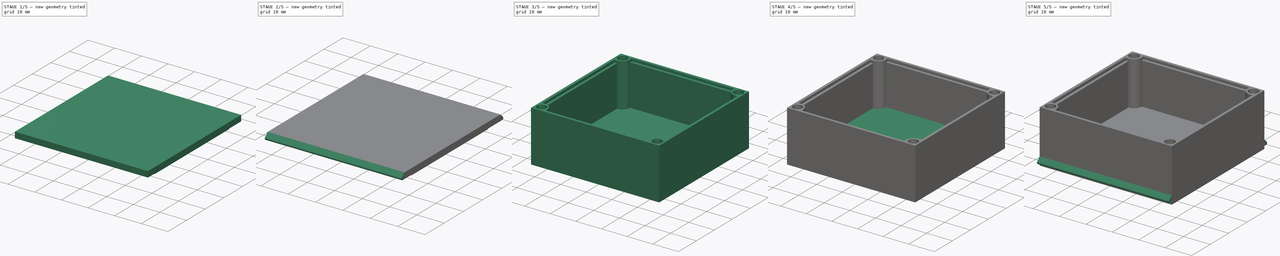
[diagram: build sequence overview — one tinted view per stage of 5, left to right]
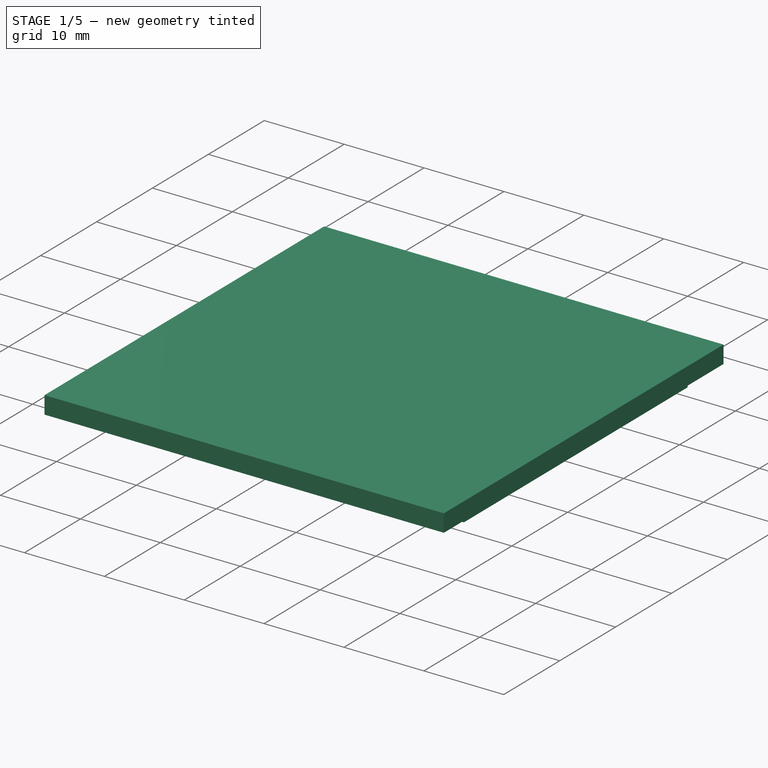
[diagram: stage 1 of 5 — iso view after this stage's code; geometry added in this stage tinted green]
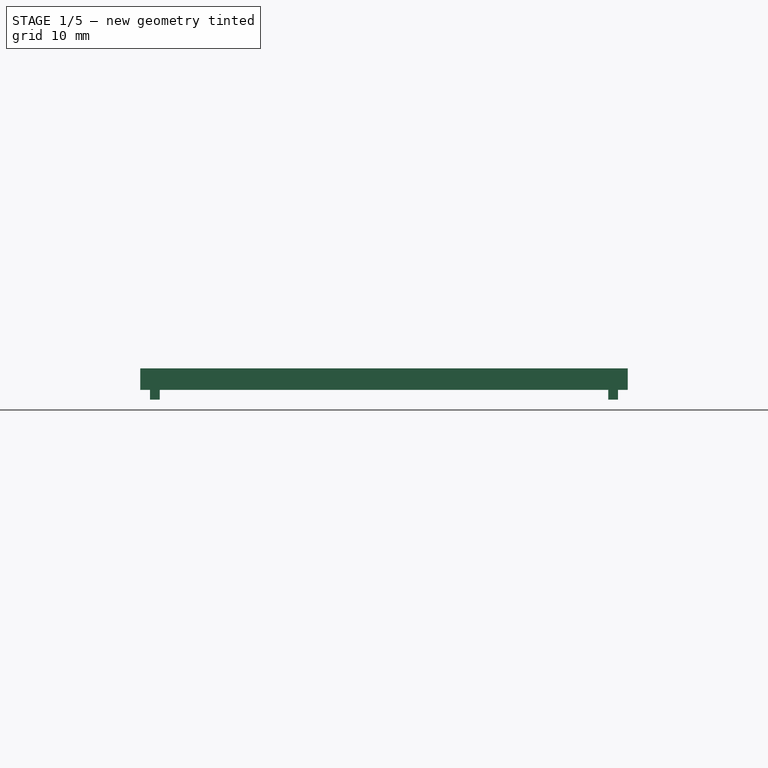
[diagram: stage 1 of 5 — front view after this stage's code; geometry added in this stage tinted green]
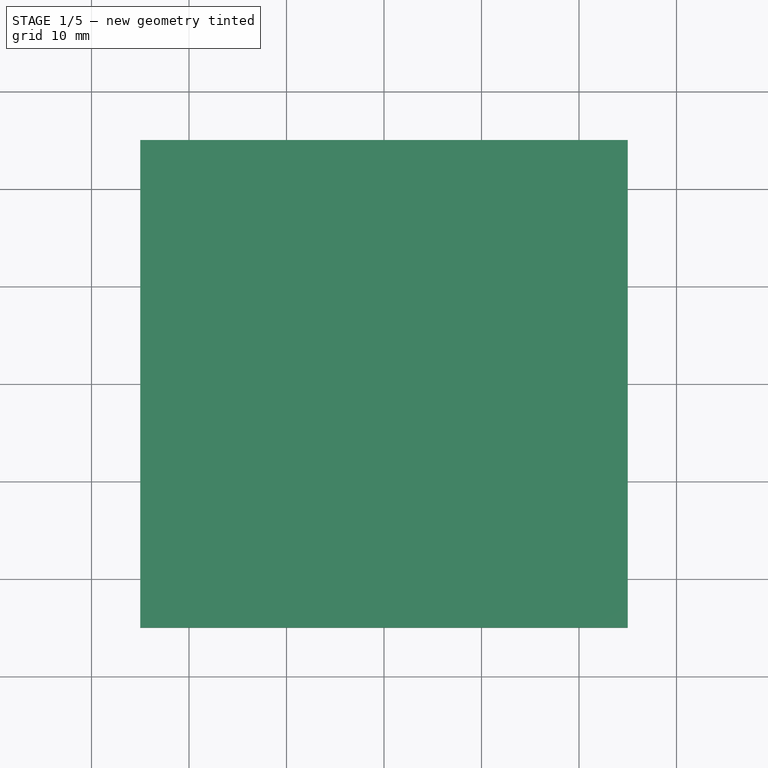
[diagram: stage 1 of 5 — top view after this stage's code; geometry added in this stage tinted green]
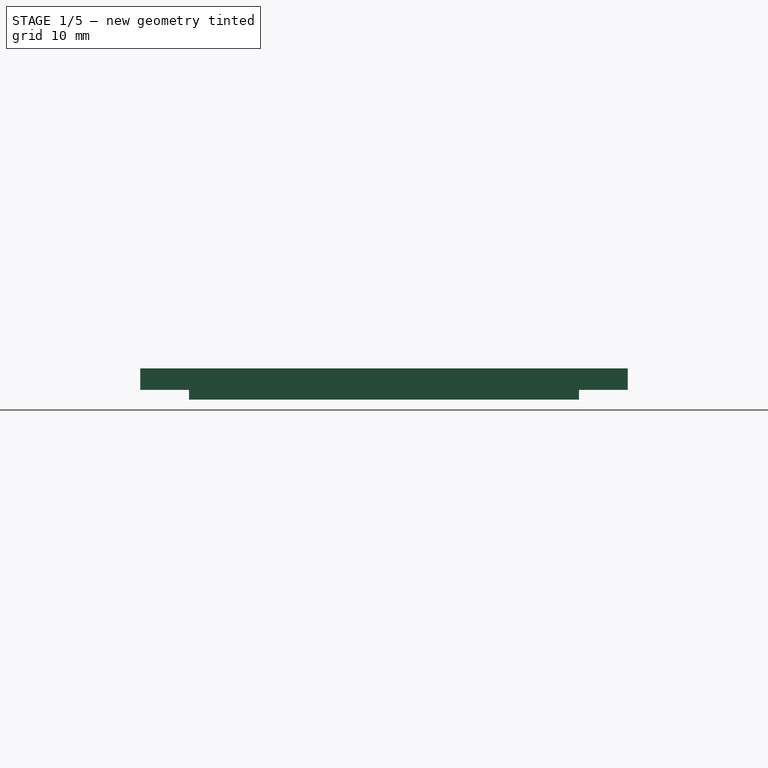
[diagram: stage 1 of 5 — right view after this stage's code; geometry added in this stage tinted green]
FCSTD DOCUMENT  (FreeCAD 1.1R41843 (Git))
Label: Безымянный
License: All rights reserved
LicenseURL: https://en.wikipedia.org/wiki/All_rights_reserved
objects: PartDesign::Pad×10, PartDesign::SubShapeBinder×9, Sketcher::SketchObject×8, App::Point×3, PartDesign::Pocket×3, PartDesign::Body×3, Spreadsheet::Sheet×2, Part::DatumPlane×2, PartDesign::Fillet×2, Part::Cut×1
note: 74 computed .brp shape members not serialized (recipe doc carries the construction recipe); baked Part::Feature solids carry a one-line shape summary decoded from their .brp

FEATURE [PartDesign::Body] Body001  label="Тело001"
  AllowCompound = false
  Group = -> [Binder001,DatumPlane,Sketch002,Binder002,Pad002,Pad003,Binder007,Pocket001,Binder008,Sketch003,Pad004,Sketch004,Pad005,Fillet]
  Origin = -> Origin002
  Placement = pos=(0,0,19) rot=(0,0,1;0rad)
  Tip = -> Fillet
FEATURE [PartDesign::SubShapeBinder] Binder010
  BindCopyOnChange = 0
  BindMode = 0
  ClaimChildren = false
  Context = -> Body003 [Binder010.]
  Fuse = false
  MakeFace = true
  OffsetFill = false
  OffsetIntersection = false
  OffsetJoinType = 0
  OffsetOpenResult = false
  PartialLoad = false
  Refine = true
  Relative = true
  _Version = 2
FEATURE [PartDesign::SubShapeBinder] Binder011
  BindCopyOnChange = 0
  BindMode = 0
  ClaimChildren = false
  Context = -> Body003 [Binder011.]
  Fuse = false
  MakeFace = true
  OffsetFill = false
  OffsetIntersection = false
  OffsetJoinType = 0
  OffsetOpenResult = false
  PartialLoad = false
  Refine = true
  Relative = true
  _Version = 2
FEATURE [PartDesign::SubShapeBinder] Binder012
  BindCopyOnChange = 0
  BindMode = 0
  ClaimChildren = false
  Context = -> Body003 [Binder012.]
  Fuse = false
  MakeFace = true
  OffsetFill = false
  OffsetIntersection = false
  OffsetJoinType = 0
  OffsetOpenResult = false
  PartialLoad = false
  Refine = true
  Relative = true
  _Version = 2
FEATURE [PartDesign::SubShapeBinder] Binder013
  BindCopyOnChange = 0
  BindMode = 0
  ClaimChildren = false
  Context = -> Body003 [Binder013.]
  Fuse = false
  MakeFace = true
  OffsetFill = false
  OffsetIntersection = false
  OffsetJoinType = 0
  OffsetOpenResult = false
  PartialLoad = false
  Refine = true
  Relative = true
  _Version = 2
FEATURE [Part::DatumPlane] DatumPlane001
  AttachmentSupport = -> [Binder010]
  MapMode = 13
  Placement = pos=(-7.66667,-6.66667,-2) rot=(0,0,1;0rad)
FEATURE [App::Point] Origin007  label="Начало координат007"
  Role = Origin
FEATURE [PartDesign::Pad] Pad008
  Direction = (0,0,1)
  Length = 2.2
  Length2 = 10
  Profile = -> Binder011
  Refine = true
  Suppressed = false
  Type = 0
FEATURE [Sketcher::SketchObject] Sketch007
  ArcFitTolerance = 1e-06
  AttachmentSupport = -> [DatumPlane001]
  ExternalGeometry = -> [Binder010]
  ExternalTypes = [0,0]
  FullyConstrained = true
  MakeInternals = false
  MapMode = 5
  Placement = pos=(-7.66667,-6.66667,-2) rot=(0,0,1;0rad)
  sketch-geometry (6):
    g0: LineSegment StartX=-15.3333 StartY=26.6667 StartZ=0 EndX=-16.3333 EndY=26.6667 EndZ=0
    g1: LineSegment StartX=-16.3333 StartY=26.6667 StartZ=0 EndX=-16.3333 EndY=-13.3333 EndZ=0
    g2: LineSegment StartX=-16.3333 StartY=-13.3333 StartZ=0 EndX=-15.3333 EndY=-13.3333 EndZ=0
    g3: LineSegment StartX=30.6667 StartY=-13.3333 StartZ=0 EndX=31.6667 EndY=-13.3333 EndZ=0
    g4: LineSegment StartX=31.6667 StartY=-13.3333 StartZ=0 EndX=31.6667 EndY=26.6667 EndZ=0
    g5: LineSegment StartX=31.6667 StartY=26.6667 StartZ=0 EndX=30.6667 EndY=26.6667 EndZ=0
  constraints (16):
    c: Coincident(g-4,g0)
    c: Coincident(g0,g1)
    c: Vertical(g1)
    c: Coincident(g1,g2)
    c: Coincident(g2,g-4)
    c: Coincident(g-3,g3)
    c: Coincident(g3,g4)
    c: Vertical(g4)
    c: Coincident(g4,g5)
    c: Coincident(g5,g-3)
    c: Equal(g0,g5)
    c: Distance(g5,g5) = 1
    c: Horizontal(g5)
    c: Horizontal(g3)
    c: Horizontal(g2)
    c: Horizontal(g0)
FEATURE [PartDesign::Pad] Pad009
  BaseFeature = -> Pad008
  Direction = (0,0,1)
  Length = 1
  Length2 = 10
  Profile = -> Sketch007
  ReferenceAxis = -> Sketch007 [N_Axis]
  Refine = true
  Reversed = true
  Suppressed = false
  Type = 0
FEATURE [PartDesign::Pocket] Pocket003
  BaseFeature = -> Pad009
  Direction = (0,0,-1)
  Length = 2
  Length2 = 5
  Profile = -> Binder012
  Refine = true
  Reversed = true
  Suppressed = false
  Type = 0
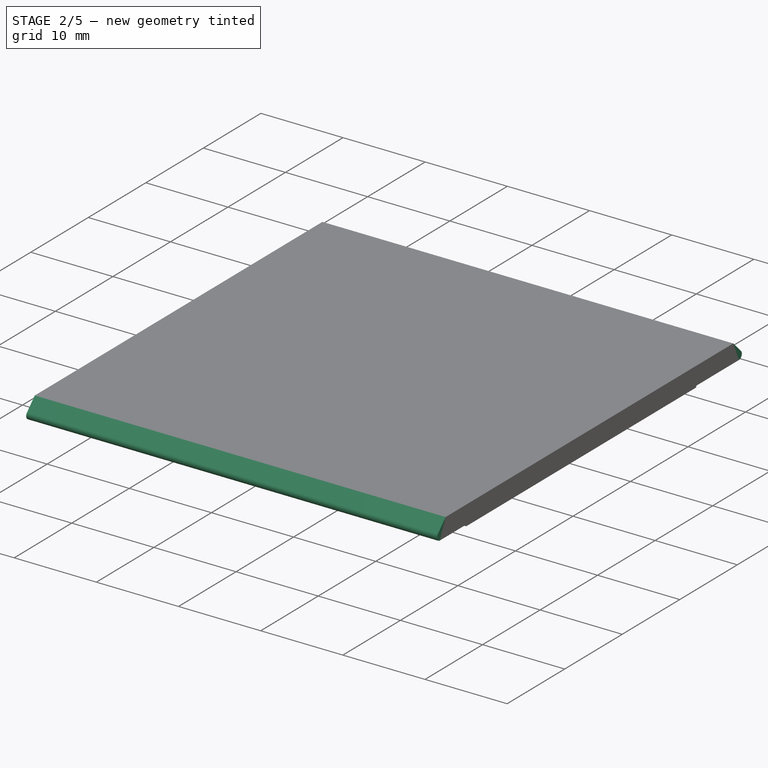
[diagram: stage 2 of 5 — iso view after this stage's code; geometry added in this stage tinted green]
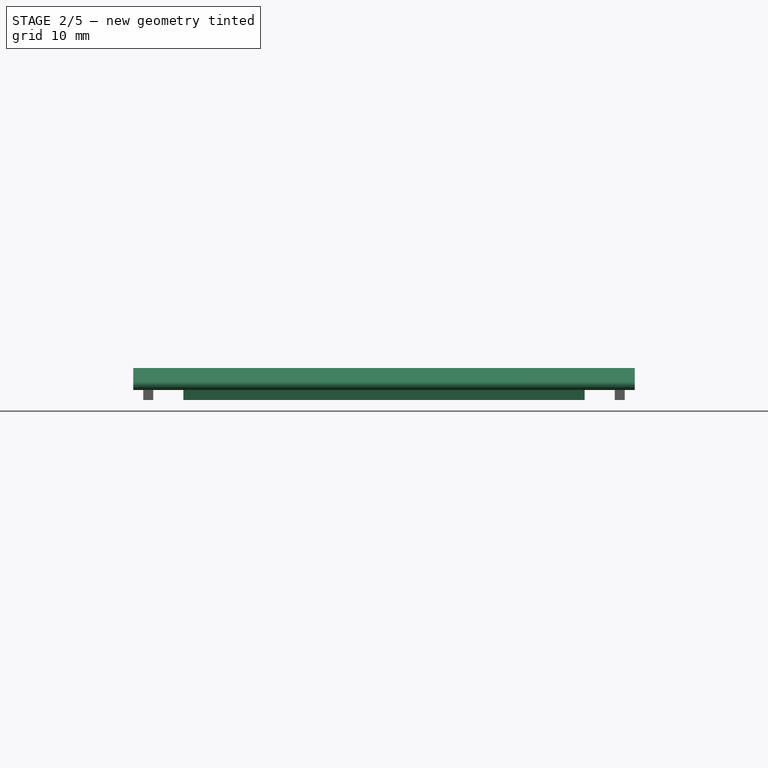
[diagram: stage 2 of 5 — front view after this stage's code; geometry added in this stage tinted green]
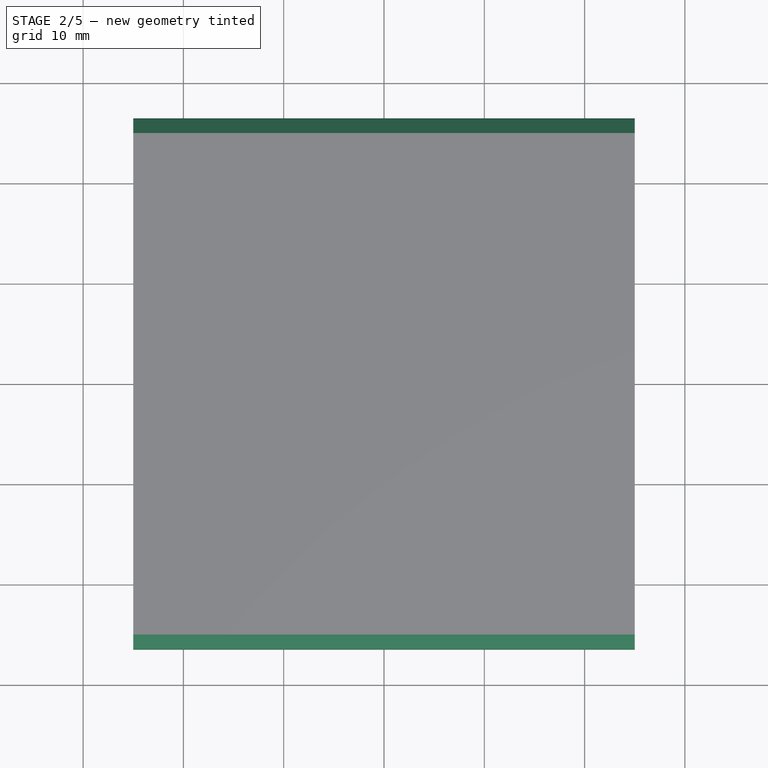
[diagram: stage 2 of 5 — top view after this stage's code; geometry added in this stage tinted green]
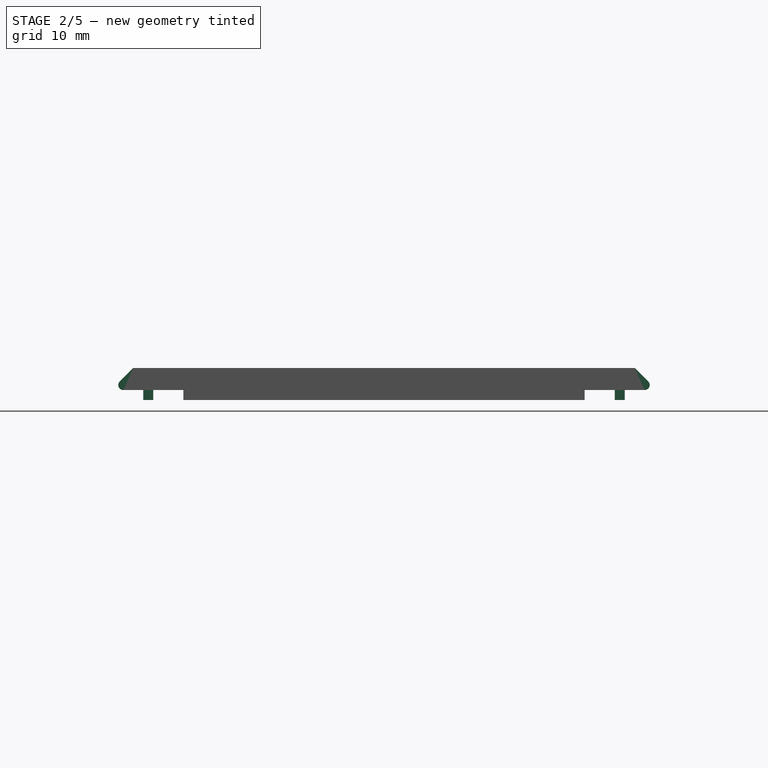
[diagram: stage 2 of 5 — right view after this stage's code; geometry added in this stage tinted green]
FEATURE [Sketcher::SketchObject] Sketch008
  ArcFitTolerance = 1e-06
  AttachmentSupport = -> [DatumPlane001]
  ExternalGeometry = -> [Binder013]
  ExternalTypes = [0,0]
  FullyConstrained = true
  MakeInternals = false
  MapMode = 5
  Placement = pos=(-7.66667,-6.66667,-2) rot=(0,0,1;0rad)
  sketch-geometry (6):
    g0: LineSegment StartX=-12.3333 StartY=29.6667 StartZ=0 EndX=-12.3333 EndY=30.6667 EndZ=0
    g1: LineSegment StartX=-12.3333 StartY=30.6667 StartZ=0 EndX=27.6667 EndY=30.6667 EndZ=0
    g2: LineSegment StartX=27.6667 StartY=30.6667 StartZ=0 EndX=27.6667 EndY=29.6667 EndZ=0
    g3: LineSegment StartX=27.6667 StartY=-16.3333 StartZ=0 EndX=27.6667 EndY=-17.3333 EndZ=0
    g4: LineSegment StartX=27.6667 StartY=-17.3333 StartZ=0 EndX=-12.3333 EndY=-17.3333 EndZ=0
    g5: LineSegment StartX=-12.3333 StartY=-17.3333 StartZ=0 EndX=-12.3333 EndY=-16.3333 EndZ=0
  constraints (16):
    c: Coincident(g-3,g0)
    c: Coincident(g0,g1)
    c: Horizontal(g1)
    c: Coincident(g1,g2)
    c: Coincident(g2,g-3)
    c: Coincident(g-4,g3)
    c: Coincident(g3,g4)
    c: Horizontal(g4)
    c: Coincident(g4,g5)
    c: Coincident(g5,g-4)
    c: Vertical(g5)
    c: Equal(g0,g5)
    c: Distance(g5,g5) = 1
    c: Vertical(g2)
    c: Vertical(g3)
    c: Vertical(g0)
FEATURE [PartDesign::Pad] Pad010
  BaseFeature = -> Pocket003
  Direction = (0,0,1)
  Length = 1
  Length2 = 10
  Profile = -> Sketch008
  ReferenceAxis = -> Sketch008 [N_Axis]
  Refine = true
  Reversed = true
  Suppressed = false
  Type = 0
FEATURE [Sketcher::SketchObject] Sketch009
  ArcFitTolerance = 1e-06
  AttachmentSupport = -> [Pad010]
  ExternalGeometry = -> [Pad010]
  ExternalTypes = [0,0]
  FullyConstrained = true
  MakeInternals = false
  MapMode = 5
  Placement = pos=(25,0,0) rot=(0.57735,0.57735,0.57735;2.0944rad)
  sketch-geometry (4):
    g0: LineSegment StartX=25 StartY=0.2 StartZ=0 EndX=27.2 EndY=-2 EndZ=0
    g1: LineSegment StartX=27.2 StartY=-2 StartZ=0 EndX=25 EndY=-2 EndZ=0
    g2: LineSegment StartX=-25 StartY=0.2 StartZ=0 EndX=-27.2 EndY=-2 EndZ=0
    g3: LineSegment StartX=-27.2 StartY=-2 StartZ=0 EndX=-25 EndY=-2 EndZ=0
  constraints (10):
    c: Coincident(g-4,g0)
    c: Coincident(g0,g1)
    c: Coincident(g1,g-4)
    c: Horizontal(g1)
    c: Coincident(g-3,g2)
    c: Coincident(g2,g3)
    c: Coincident(g3,g-3)
    c: Horizontal(g3)
    c: Equal(g3,g-3)
    c: Equal(g-3,g1)
FEATURE [PartDesign::Pad] Pad011
  BaseFeature = -> Pad010
  Direction = (1,0,0)
  Length = 10
  Length2 = 10
  Profile = -> Sketch009
  ReferenceAxis = -> Sketch009 [N_Axis]
  Refine = true
  Suppressed = false
  Type = 3
  UpToFace = -> Pad010 [Face2]
FEATURE [PartDesign::Fillet] Fillet001
  Base = -> Pad011 [Edge6,Edge9]
  BaseFeature = -> Pad011
  Radius = 0.5
  Refine = true
  SupportTransform = false
  Suppressed = false
  UseAllEdges = false
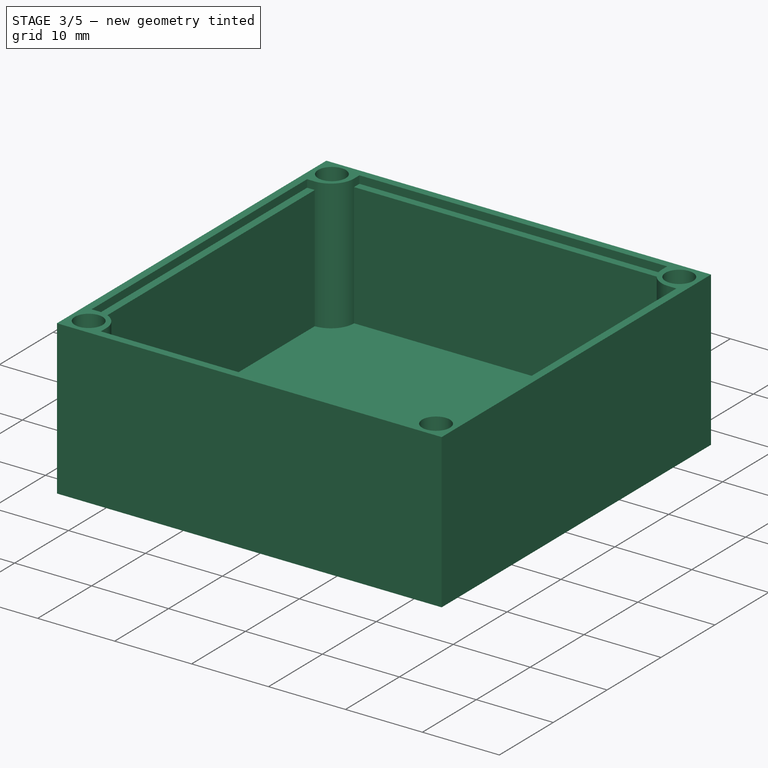
[diagram: stage 3 of 5 — iso view after this stage's code; geometry added in this stage tinted green]
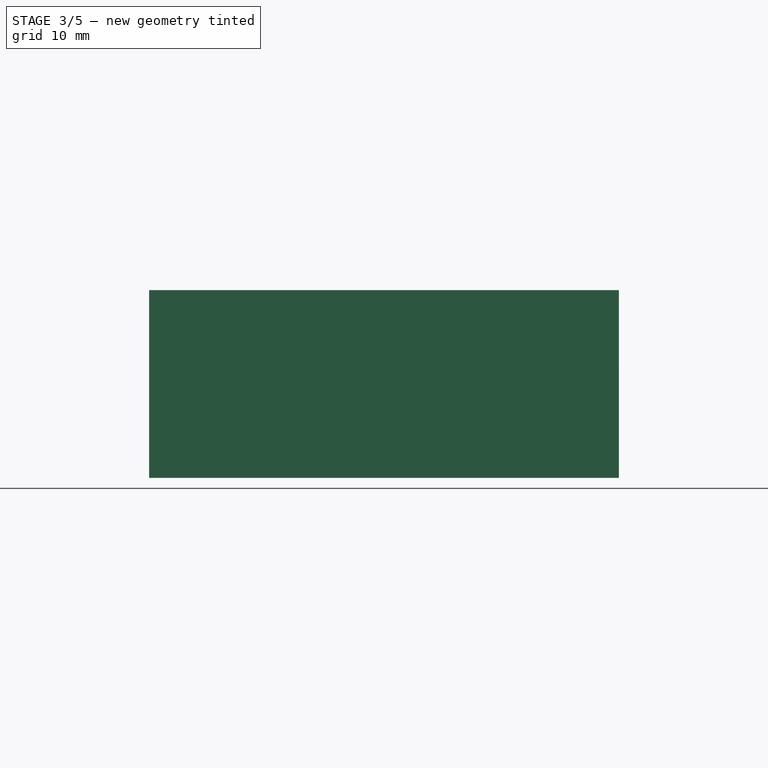
[diagram: stage 3 of 5 — front view after this stage's code; geometry added in this stage tinted green]
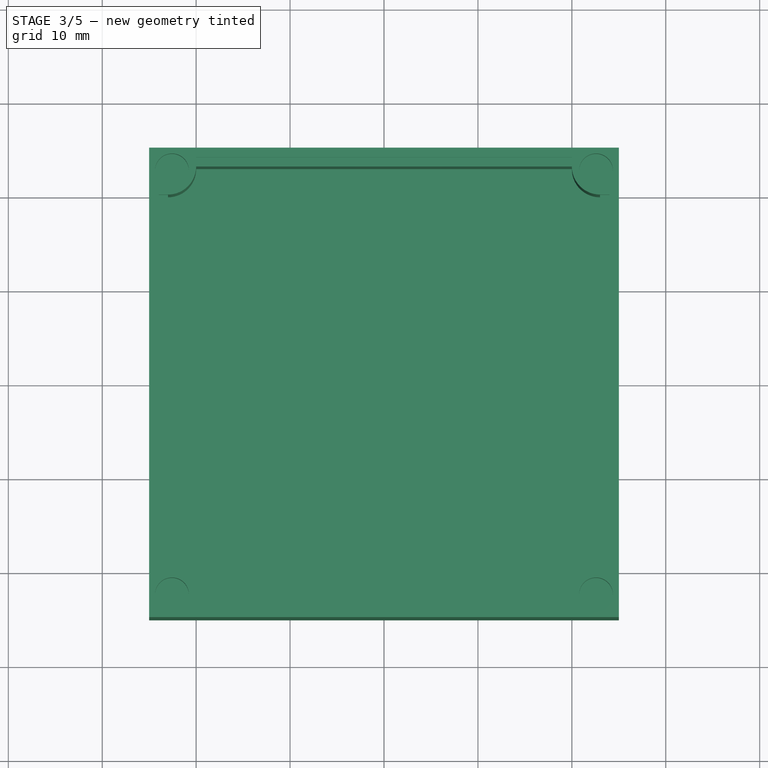
[diagram: stage 3 of 5 — top view after this stage's code; geometry added in this stage tinted green]
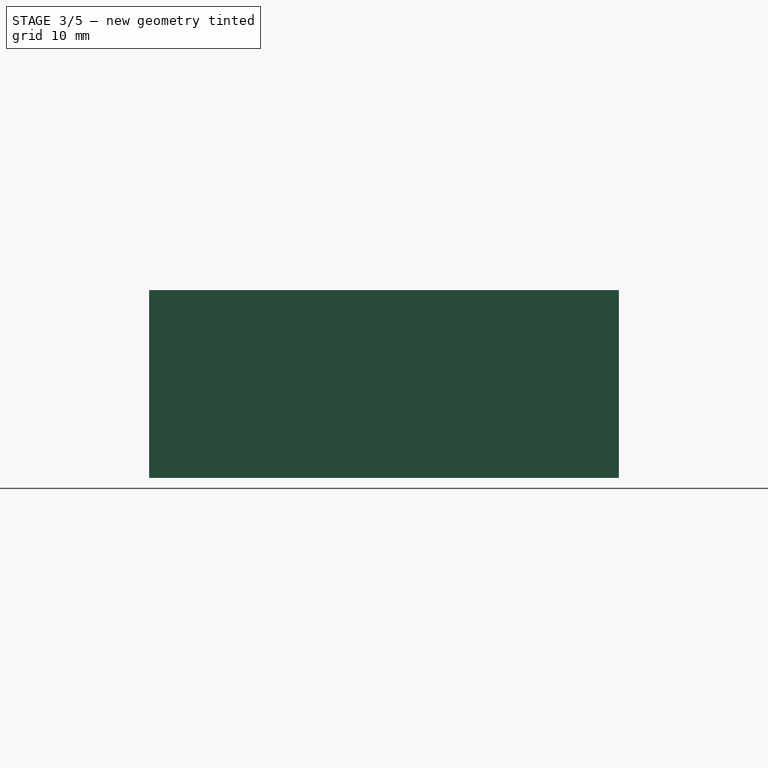
[diagram: stage 3 of 5 — right view after this stage's code; geometry added in this stage tinted green]
FEATURE [Sketcher::SketchObject] Sketch
  ArcFitTolerance = 1e-06
  AttachmentSupport = -> [Origin]
  ExternalTypes = [0]
  FullyConstrained = true
  MakeInternals = false
  MapMode = 5
  expr: Constraints[13] = Spreadsheet.jeng
  expr: Constraints[14] = Spreadsheet.hei
  expr: Constraints[22] = Spreadsheet.line
  sketch-geometry (16):
    g0: LineSegment StartX=-23 StartY=20 StartZ=0 EndX=-23 EndY=-20 EndZ=0
    g1: LineSegment StartX=-20 StartY=-23 StartZ=0 EndX=20 EndY=-23 EndZ=0
    g2: LineSegment StartX=23 StartY=-20 StartZ=0 EndX=23 EndY=20 EndZ=0
    g3: LineSegment StartX=20 StartY=23 StartZ=0 EndX=-20 EndY=23 EndZ=0
    g4: LineSegment StartX=-25 StartY=25 StartZ=0 EndX=-25 EndY=-25 EndZ=0
    g5: LineSegment StartX=-25 StartY=-25 StartZ=0 EndX=25 EndY=-25 EndZ=0
    g6: LineSegment StartX=25 StartY=-25 StartZ=0 EndX=25 EndY=25 EndZ=0
    g7: LineSegment StartX=25 StartY=25 StartZ=0 EndX=-25 EndY=25 EndZ=0
    g8: LineSegment [constr] StartX=23 StartY=23 StartZ=0 EndX=23 EndY=25 EndZ=0
    g9: LineSegment [constr] StartX=23 StartY=23 StartZ=0 EndX=25 EndY=23 EndZ=0
    g10: LineSegment [constr] StartX=-25 StartY=-23 StartZ=0 EndX=-23 EndY=-23 EndZ=0
    g11: LineSegment [constr] StartX=-23 StartY=-25 StartZ=0 EndX=-23 EndY=-23 EndZ=0
    g12: ArcOfCircle CenterX=-23 CenterY=23 CenterZ=0 NormalX=0 NormalY=0 NormalZ=1 AngleXU=0 Radius=3 StartAngle=4.71239 EndAngle=6.28319
    g13: ArcOfCircle CenterX=23 CenterY=23 CenterZ=0 NormalX=0 NormalY=0 NormalZ=1 AngleXU=0 Radius=3 StartAngle=3.14159 EndAngle=4.71239
    g14: ArcOfCircle CenterX=23 CenterY=-23 CenterZ=0 NormalX=0 NormalY=0 NormalZ=1 AngleXU=0 Radius=3 StartAngle=1.5708 EndAngle=3.14159
    g15: ArcOfCircle CenterX=-23 CenterY=-23 CenterZ=0 NormalX=0 NormalY=0 NormalZ=1 AngleXU=0 Radius=3 StartAngle=0 EndAngle=1.5708
  constraints (51):
    c: Coincident(g4,g5)
    c: Coincident(g5,g6)
    c: Coincident(g6,g7)
    c: Coincident(g7,g4)
    c: Vertical(g4)
    c: Vertical(g6)
    c: Horizontal(g5)
    c: Horizontal(g7)
    c: PointOnObject(g8,g7)
    c: Vertical(g8)
    c: PointOnObject(g9,g6)
    c: Horizontal(g9)
    c: Equal(g9,g8)
    c: DistanceX(g7,g7) = 50
    c: DistanceY(g6,g6) = 50
    c: PointOnObject(g10,g4)
    c: PointOnObject(g11,g5)
    c: Coincident(g11,g10)
    c: Equal(g11,g10)
    c: Equal(g10,g8)
    c: Vertical(g11)
    c: Horizontal(g10)
    c: DistanceX(g9,g9) = 2
    c: Symmetric(g4,g6,g-1)
    c: Equal(g13,g12)
    c: Equal(g12,g15)
    c: Equal(g15,g14)
    c: Radius(g14) = 3
    c: Coincident(g14,g1)
    c: Coincident(g14,g2)
    c: Vertical(g14,g2)
    c: Horizontal(g14,g1)
    c: Coincident(g15,g0)
    c: Horizontal(g1)
    c: Coincident(g15,g1)
    c: Vertical(g0,g15)
    c: Horizontal(g15,g1)
    c: Coincident(g10,g15)
    c: Coincident(g12,g3)
    c: Vertical(g0)
    c: Coincident(g12,g0)
    c: Vertical(g0,g12)
    c: Horizontal(g12,g3)
    c: Horizontal(g3)
    c: Coincident(g13,g3)
    c: Vertical(g2)
    c: Coincident(g13,g2)
    c: Horizontal(g13,g3)
    c: Vertical(g2,g13)
    c: Coincident(g13,g8)
    c: Coincident(g9,g8)
FEATURE [PartDesign::Pad] Pad
  Direction = (0,0,1)
  Length = 17
  Length2 = 10
  Profile = -> Sketch
  ReferenceAxis = -> Sketch [N_Axis]
  Refine = true
  Suppressed = false
  Type = 0
  expr: Length = Spreadsheet.height - Spreadsheet.dno
FEATURE [App::Point] Origin001  label="Начало координат"
  Role = Origin
FEATURE [Spreadsheet::Sheet] Spreadsheet
  cells = A1='Размеры дна; D1='Пазы для магнитиков; A2='Толщина:; B2(dno)=3; D2='Высота:; E2(mag1)=3; A3='Общая длина:; B3(jeng)=50; D3='Диаметр:; E3(mag2)=2; A4='Общая ширина:; B4(hei)=50; A6='Размеры рамки; A7='Толщина стенки:; B7(line)=2; B8(klin)=1; A9='Общая высота:; B9(height)=20; A12='Размеры крышки; A13='Высота; B13(height2)=2; A14='Толщина:; B14(tol)=2
FEATURE [PartDesign::SubShapeBinder] Binder
  BindCopyOnChange = 0
  BindMode = 0
  ClaimChildren = false
  Context = -> Body [Binder.]
  Fuse = false
  MakeFace = true
  OffsetFill = false
  OffsetIntersection = false
  OffsetJoinType = 0
  OffsetOpenResult = false
  PartialLoad = false
  Refine = true
  Relative = true
  Support = -> [Pad[Edge6,Edge9,Edge3,Edge11]]
  _Version = 2
FEATURE [PartDesign::Pad] Pad001
  BaseFeature = -> Pad
  Direction = (0,0,1)
  Length = 3
  Length2 = 10
  Profile = -> Binder
  Refine = true
  Reversed = true
  Suppressed = false
  Type = 0
  expr: Length = Spreadsheet.dno
FEATURE [Sketcher::SketchObject] Sketch001
  ArcFitTolerance = 1e-06
  AttachmentSupport = -> [Pad001]
  ExternalGeometry = -> [Pad001]
  ExternalTypes = [0,0,0,0]
  FullyConstrained = false
  MakeInternals = false
  MapMode = 5
  Placement = pos=(0,0,17) rot=(0,0,1;0rad)
  sketch-geometry (7):
    g0: Circle CenterX=-22.5744 CenterY=22.5744 CenterZ=0 NormalX=0 NormalY=0 NormalZ=1 AngleXU=0 Radius=1.8
    g1: Circle CenterX=22.5744 CenterY=22.5744 CenterZ=0 NormalX=0 NormalY=0 NormalZ=1 AngleXU=0 Radius=1.8
    g2: Circle CenterX=22.5744 CenterY=-22.5744 CenterZ=0 NormalX=0 NormalY=0 NormalZ=1 AngleXU=0 Radius=1.8
    g3: Circle CenterX=-22.5744 CenterY=-22.5744 CenterZ=0 NormalX=0 NormalY=0 NormalZ=1 AngleXU=0 Radius=1.8
    g4: LineSegment [constr] StartX=-23 StartY=20 StartZ=0 EndX=-21.5 EndY=21.5 EndZ=0
    g5: LineSegment [constr] StartX=-21.5 StartY=21.5 StartZ=0 EndX=-20 EndY=23 EndZ=0
    g6: LineSegment [constr] StartX=-21.5 StartY=21.5 StartZ=0 EndX=-23 EndY=23 EndZ=0
  constraints (16):
    c: Equal(g0,g1)
    c: Equal(g1,g2)
    c: Equal(g2,g3)
    c: Symmetric(g3,g1,g-1)
    c: Symmetric(g2,g0,g-1)
    c: Coincident(g-3,g4)
    c: Coincident(g4,g5)
    c: Coincident(g5,g-3)
    c: Coincident(g4,g6)
    c: Coincident(g6,g-3)
    c: Equal(g5,g4)
    c: Perpendicular(g5,g6)
    c: PointOnObject(g0,g6)
    c: Diameter(g0) = 3.6
    c: Vertical(g3,g0)
    c: Horizontal(g1,g0)
FEATURE [PartDesign::Pocket] Pocket
  BaseFeature = -> Pad001
  Direction = (0,0,-1)
  Length = 3
  Length2 = 5
  Profile = -> Sketch001
  ReferenceAxis = -> Sketch001 [N_Axis]
  Refine = true
  Suppressed = false
  Type = 0
  expr: Length = Spreadsheet.mag1
FEATURE [PartDesign::Body] Body003  label="Тело003"
  AllowCompound = false
  Group = -> [Binder010,DatumPlane001,Sketch007,Binder011,Pad008,Pad009,Binder012,Pocket003,Binder013,Sketch008,Pad010,Sketch009,Pad011,Fillet001]
  Origin = -> Origin006
  Placement = pos=(0,0,19) rot=(0,0,1;0rad)
  Tip = -> Fillet001
FEATURE [Spreadsheet::Sheet] Spreadsheet001
  cells = A1='Размеры дна; D1='Пазы для магнитиков; A2='Толщина:; B2(dno)=3; D2='Высота:; E2(mag1)=3; A3='Общая длина:; B3(jeng)=50; D3='Диаметр:; E3(mag2)=2; A4='Общая ширина:; B4(hei)=50; A6='Размеры рамки; A7='Толщина стенки:; B7(line)=2; B8(klin)=1; A9='Общая высота:; B9(height)=20; A12='Размеры крышки; A13='Высота; B13(height2)=2; A14='Толщина:; B14(tol)=2
FEATURE [Part::Cut] Cut
  Base = -> Body
  Refine = true
  Tool = -> Body003
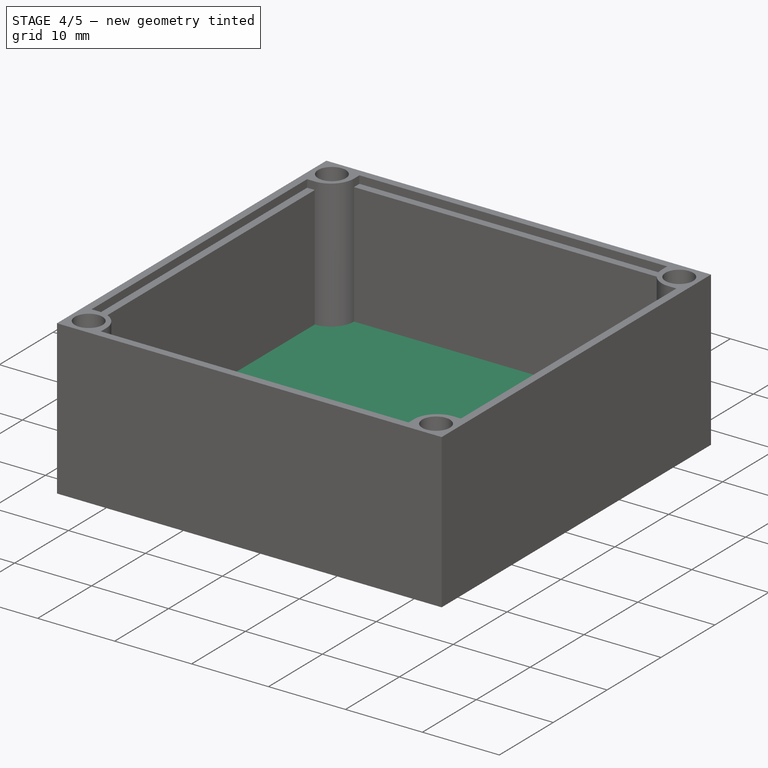
[diagram: stage 4 of 5 — iso view after this stage's code; geometry added in this stage tinted green]
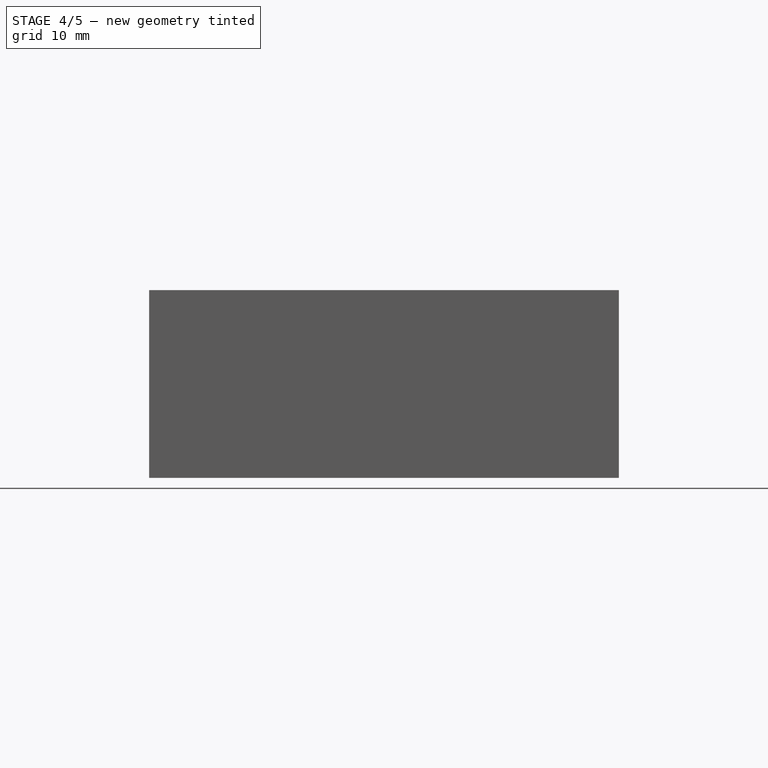
[diagram: stage 4 of 5 — front view after this stage's code; geometry added in this stage tinted green]
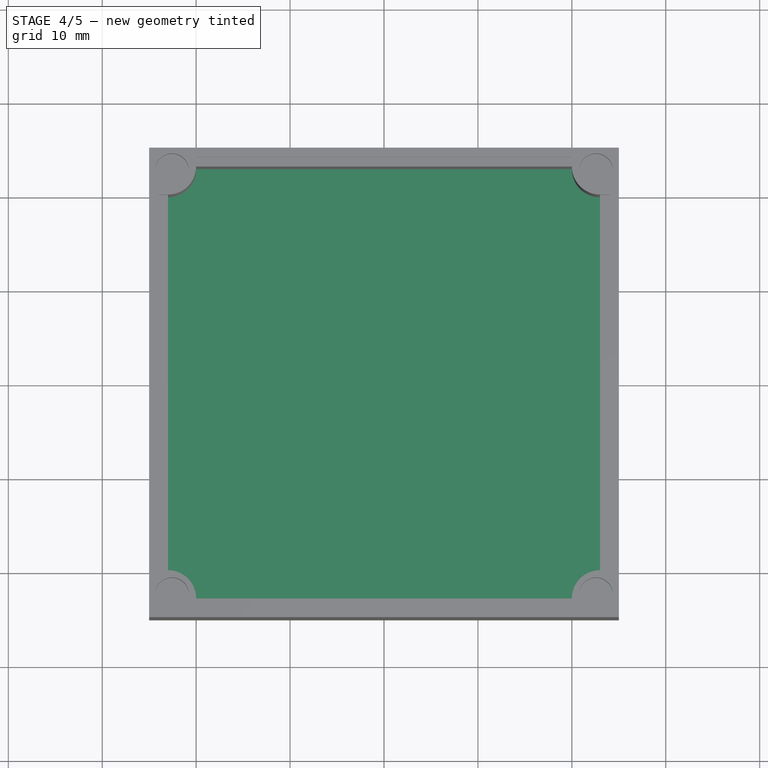
[diagram: stage 4 of 5 — top view after this stage's code; geometry added in this stage tinted green]
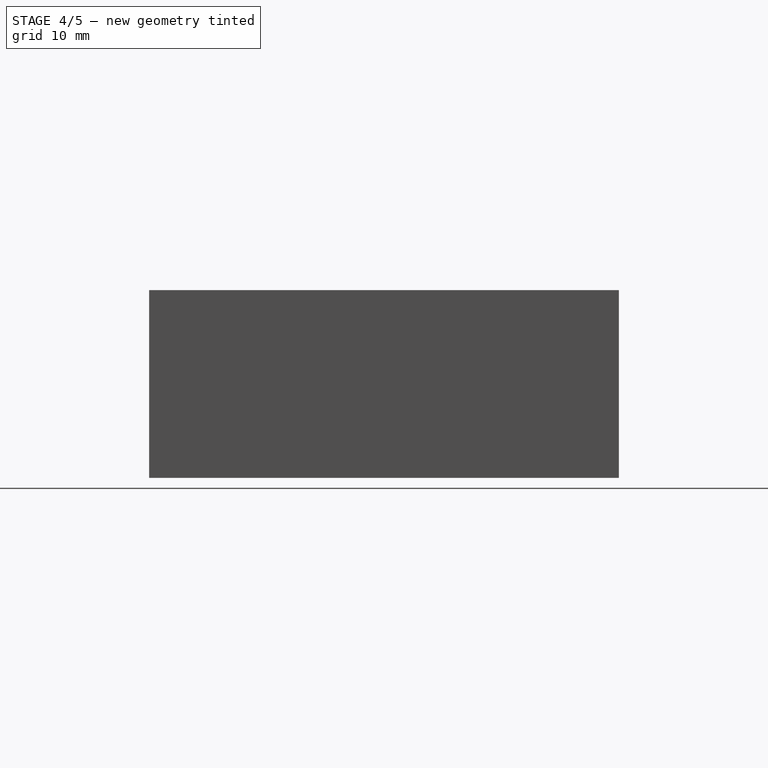
[diagram: stage 4 of 5 — right view after this stage's code; geometry added in this stage tinted green]
FEATURE [PartDesign::Body] Body  label="Тело"
  AllowCompound = false
  Group = -> [Sketch,Pad,Binder,Pad001,Sketch001,Pocket]
  Origin = -> Origin
  Tip = -> Pocket
FEATURE [App::Point] Origin003  label="Начало координат002"
  Role = Origin
FEATURE [PartDesign::SubShapeBinder] Binder001
  BindCopyOnChange = 0
  BindMode = 0
  ClaimChildren = false
  Context = -> Body001 [Binder001.]
  Fuse = false
  MakeFace = true
  OffsetFill = false
  OffsetIntersection = false
  OffsetJoinType = 0
  OffsetOpenResult = false
  PartialLoad = false
  Refine = true
  Relative = true
  Support = -> [Body[Pocket.Edge18,Pocket.Edge17]]
  _Version = 2
FEATURE [Part::DatumPlane] DatumPlane
  AttachmentSupport = -> [Binder001]
  MapMode = 13
  Placement = pos=(-7.66667,-6.66667,-2) rot=(0,0,1;0rad)
FEATURE [Sketcher::SketchObject] Sketch002
  ArcFitTolerance = 1e-06
  AttachmentSupport = -> [DatumPlane]
  ExternalGeometry = -> [Binder001]
  ExternalTypes = [0,0]
  FullyConstrained = true
  MakeInternals = false
  MapMode = 5
  Placement = pos=(-7.66667,-6.66667,-2) rot=(0,0,1;0rad)
  sketch-geometry (6):
    g0: LineSegment StartX=-15.3333 StartY=26.6667 StartZ=0 EndX=-16.3333 EndY=26.6667 EndZ=0
    g1: LineSegment StartX=-16.3333 StartY=26.6667 StartZ=0 EndX=-16.3333 EndY=-13.3333 EndZ=0
    g2: LineSegment StartX=-16.3333 StartY=-13.3333 StartZ=0 EndX=-15.3333 EndY=-13.3333 EndZ=0
    g3: LineSegment StartX=30.6667 StartY=-13.3333 StartZ=0 EndX=31.6667 EndY=-13.3333 EndZ=0
    g4: LineSegment StartX=31.6667 StartY=-13.3333 StartZ=0 EndX=31.6667 EndY=26.6667 EndZ=0
    g5: LineSegment StartX=31.6667 StartY=26.6667 StartZ=0 EndX=30.6667 EndY=26.6667 EndZ=0
  constraints (16):
    c: Coincident(g-4,g0)
    c: Coincident(g0,g1)
    c: Vertical(g1)
    c: Coincident(g1,g2)
    c: Coincident(g2,g-4)
    c: Coincident(g-3,g3)
    c: Coincident(g3,g4)
    c: Vertical(g4)
    c: Coincident(g4,g5)
    c: Coincident(g5,g-3)
    c: Equal(g0,g5)
    c: Distance(g5,g5) = 1
    c: Horizontal(g5)
    c: Horizontal(g3)
    c: Horizontal(g2)
    c: Horizontal(g0)
FEATURE [PartDesign::SubShapeBinder] Binder002
  BindCopyOnChange = 0
  BindMode = 0
  ClaimChildren = false
  Context = -> Body001 [Binder002.]
  Fuse = false
  MakeFace = true
  OffsetFill = false
  OffsetIntersection = false
  OffsetJoinType = 0
  OffsetOpenResult = false
  PartialLoad = false
  Refine = true
  Relative = true
  Support = -> [Body[Pocket.Edge9,Pocket.Edge11,Pocket.Edge7,Pocket.Edge12]]
  _Version = 2
FEATURE [PartDesign::Pad] Pad002
  Direction = (0,0,1)
  Length = 2.2
  Length2 = 10
  Profile = -> Binder002
  Refine = true
  Suppressed = false
  Type = 0
FEATURE [PartDesign::Pad] Pad003
  BaseFeature = -> Pad002
  Direction = (0,0,1)
  Length = 1
  Length2 = 10
  Profile = -> Sketch002
  ReferenceAxis = -> Sketch002 [N_Axis]
  Refine = true
  Reversed = true
  Suppressed = false
  Type = 0
FEATURE [PartDesign::SubShapeBinder] Binder007
  BindCopyOnChange = 0
  BindMode = 0
  ClaimChildren = false
  Context = -> Body001 [Binder007.]
  Fuse = false
  MakeFace = true
  OffsetFill = false
  OffsetIntersection = false
  OffsetJoinType = 0
  OffsetOpenResult = false
  PartialLoad = false
  Refine = true
  Relative = true
  Support = -> [Body[Pocket.Edge13,Pocket.Edge24,Pocket.Edge22,Pocket.Edge23]]
  _Version = 2
FEATURE [PartDesign::Pocket] Pocket001
  BaseFeature = -> Pad003
  Direction = (0,0,-1)
  Length = 2
  Length2 = 5
  Profile = -> Binder007
  Refine = true
  Reversed = true
  Suppressed = false
  Type = 0
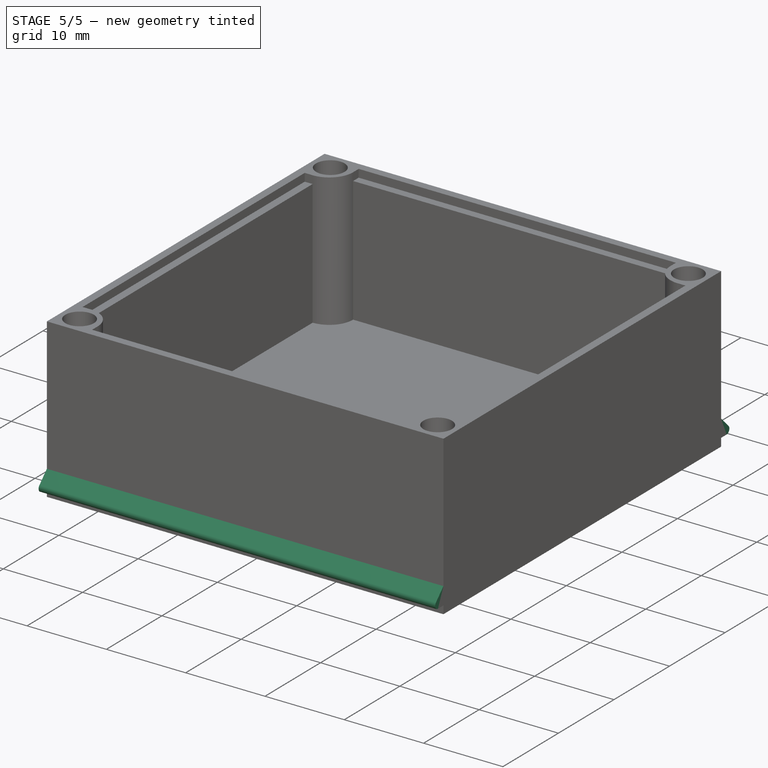
[diagram: stage 5 of 5 — iso view after this stage's code; geometry added in this stage tinted green]
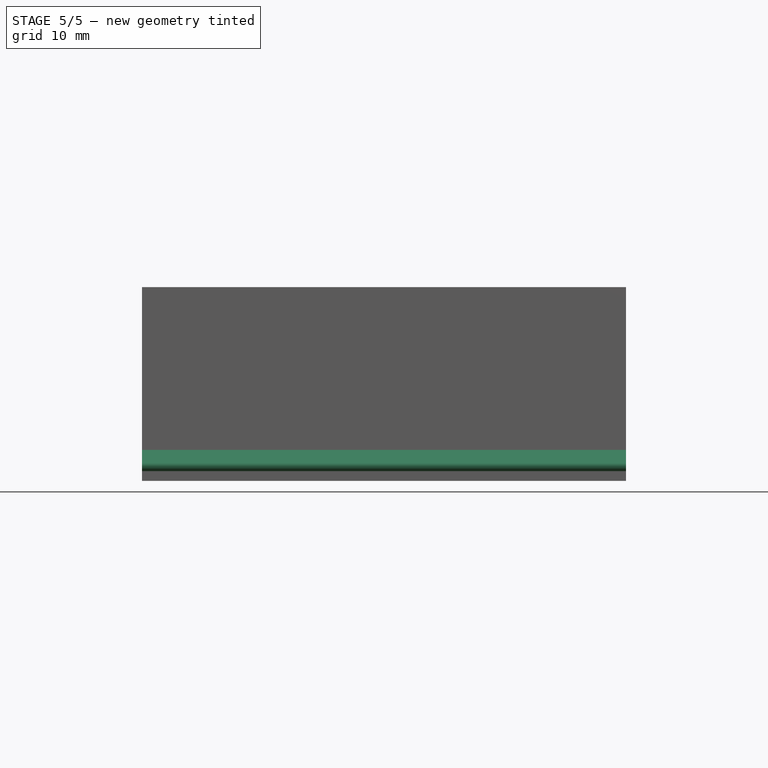
[diagram: stage 5 of 5 — front view after this stage's code; geometry added in this stage tinted green]
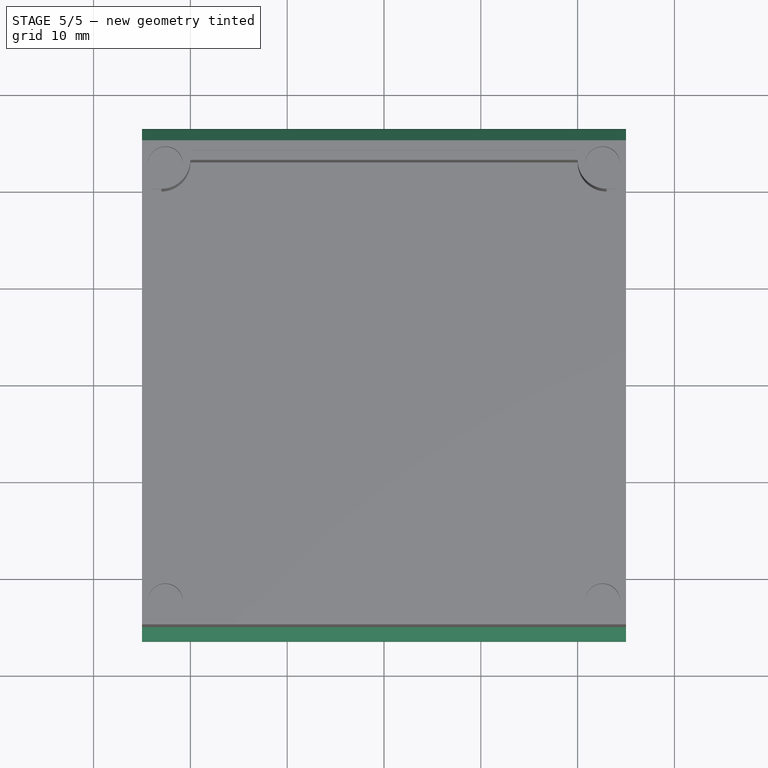
[diagram: stage 5 of 5 — top view after this stage's code; geometry added in this stage tinted green]
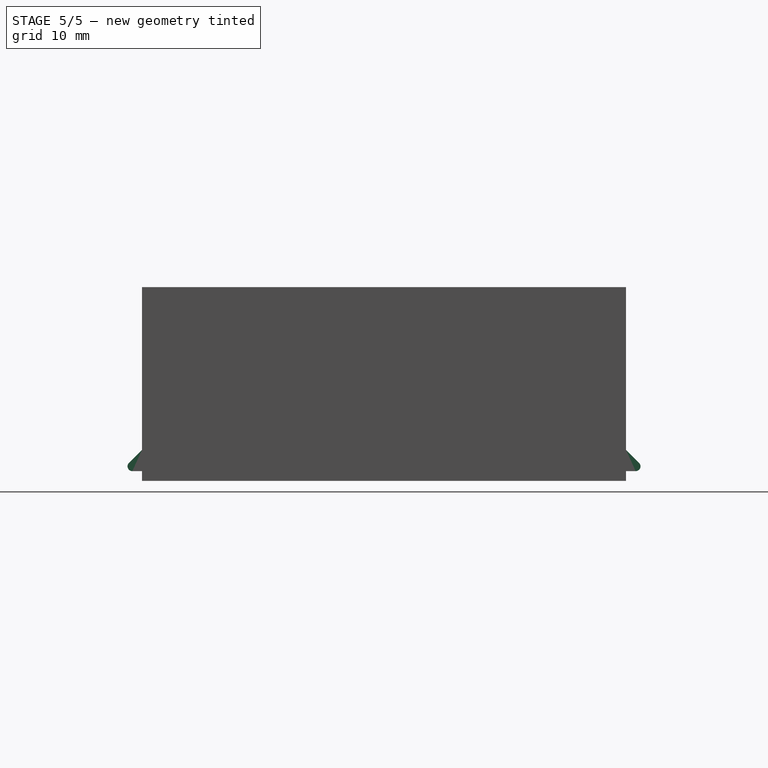
[diagram: stage 5 of 5 — right view after this stage's code; geometry added in this stage tinted green]
FEATURE [PartDesign::SubShapeBinder] Binder008
  BindCopyOnChange = 0
  BindMode = 0
  ClaimChildren = false
  Context = -> Body001 [Binder008.]
  Fuse = false
  MakeFace = true
  OffsetFill = false
  OffsetIntersection = false
  OffsetJoinType = 0
  OffsetOpenResult = false
  PartialLoad = false
  Refine = true
  Relative = true
  Support = -> [Body[Pocket.Edge21,Pocket.Edge14]]
  _Version = 2
FEATURE [Sketcher::SketchObject] Sketch003
  ArcFitTolerance = 1e-06
  AttachmentSupport = -> [DatumPlane]
  ExternalGeometry = -> [Binder008]
  ExternalTypes = [0,0]
  FullyConstrained = true
  MakeInternals = false
  MapMode = 5
  Placement = pos=(-7.66667,-6.66667,-2) rot=(0,0,1;0rad)
  sketch-geometry (6):
    g0: LineSegment StartX=-12.3333 StartY=29.6667 StartZ=0 EndX=-12.3333 EndY=30.6667 EndZ=0
    g1: LineSegment StartX=-12.3333 StartY=30.6667 StartZ=0 EndX=27.6667 EndY=30.6667 EndZ=0
    g2: LineSegment StartX=27.6667 StartY=30.6667 StartZ=0 EndX=27.6667 EndY=29.6667 EndZ=0
    g3: LineSegment StartX=27.6667 StartY=-16.3333 StartZ=0 EndX=27.6667 EndY=-17.3333 EndZ=0
    g4: LineSegment StartX=27.6667 StartY=-17.3333 StartZ=0 EndX=-12.3333 EndY=-17.3333 EndZ=0
    g5: LineSegment StartX=-12.3333 StartY=-17.3333 StartZ=0 EndX=-12.3333 EndY=-16.3333 EndZ=0
  constraints (16):
    c: Coincident(g-3,g0)
    c: Coincident(g0,g1)
    c: Horizontal(g1)
    c: Coincident(g1,g2)
    c: Coincident(g2,g-3)
    c: Coincident(g-4,g3)
    c: Coincident(g3,g4)
    c: Horizontal(g4)
    c: Coincident(g4,g5)
    c: Coincident(g5,g-4)
    c: Vertical(g5)
    c: Equal(g0,g5)
    c: Distance(g5,g5) = 1
    c: Vertical(g2)
    c: Vertical(g3)
    c: Vertical(g0)
FEATURE [PartDesign::Pad] Pad004
  BaseFeature = -> Pocket001
  Direction = (0,0,1)
  Length = 1
  Length2 = 10
  Profile = -> Sketch003
  ReferenceAxis = -> Sketch003 [N_Axis]
  Refine = true
  Reversed = true
  Suppressed = false
  Type = 0
FEATURE [Sketcher::SketchObject] Sketch004
  ArcFitTolerance = 1e-06
  AttachmentSupport = -> [Pad004]
  ExternalGeometry = -> [Pad004]
  ExternalTypes = [0,0]
  FullyConstrained = true
  MakeInternals = false
  MapMode = 5
  Placement = pos=(25,0,0) rot=(0.57735,0.57735,0.57735;2.0944rad)
  sketch-geometry (4):
    g0: LineSegment StartX=25 StartY=0.2 StartZ=0 EndX=27.2 EndY=-2 EndZ=0
    g1: LineSegment StartX=27.2 StartY=-2 StartZ=0 EndX=25 EndY=-2 EndZ=0
    g2: LineSegment StartX=-25 StartY=0.2 StartZ=0 EndX=-27.2 EndY=-2 EndZ=0
    g3: LineSegment StartX=-27.2 StartY=-2 StartZ=0 EndX=-25 EndY=-2 EndZ=0
  constraints (10):
    c: Coincident(g-4,g0)
    c: Coincident(g0,g1)
    c: Coincident(g1,g-4)
    c: Horizontal(g1)
    c: Coincident(g-3,g2)
    c: Coincident(g2,g3)
    c: Coincident(g3,g-3)
    c: Horizontal(g3)
    c: Equal(g3,g-3)
    c: Equal(g-3,g1)
FEATURE [PartDesign::Pad] Pad005
  BaseFeature = -> Pad004
  Direction = (1,0,0)
  Length = 10
  Length2 = 10
  Profile = -> Sketch004
  ReferenceAxis = -> Sketch004 [N_Axis]
  Refine = true
  Suppressed = false
  Type = 3
  UpToFace = -> Pad004 [Face2]
FEATURE [PartDesign::Fillet] Fillet
  Base = -> Pad005 [Edge6,Edge9]
  BaseFeature = -> Pad005
  Radius = 0.5
  Refine = true
  SupportTransform = false
  Suppressed = false
  UseAllEdges = false
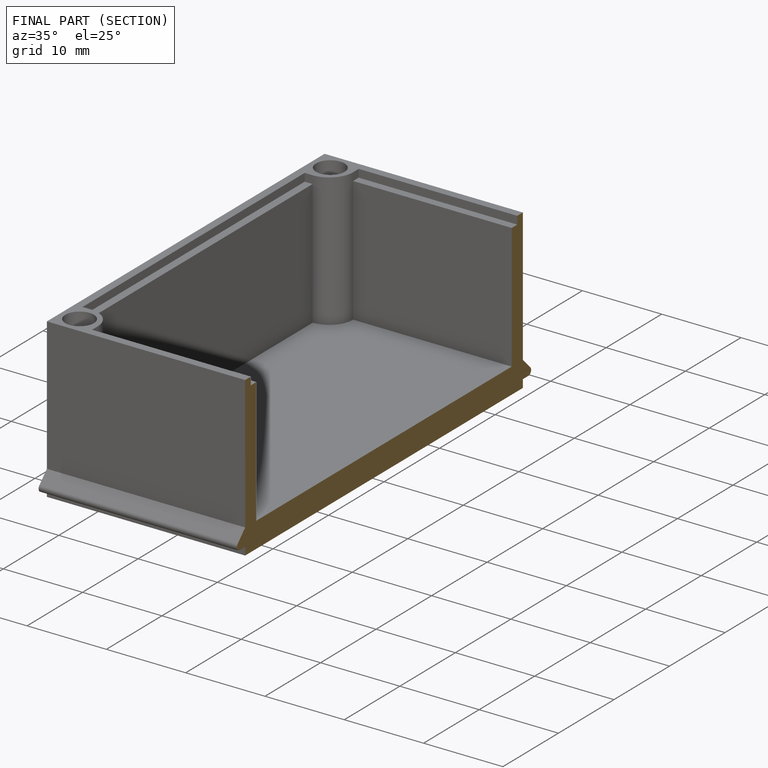
[diagram: finished part — half-section view (interior)]
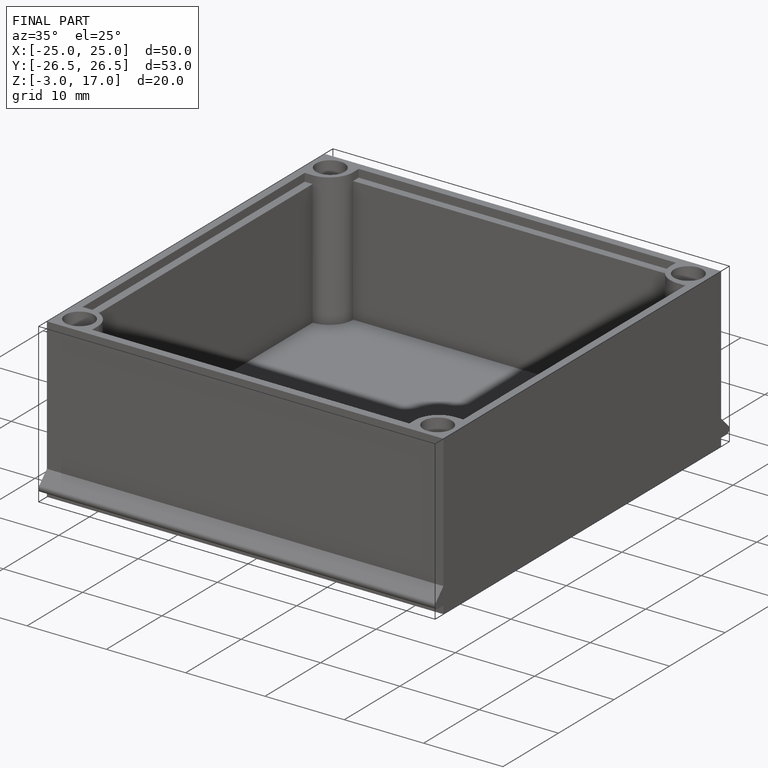
[diagram: finished part — iso view with bounding-box wireframe]
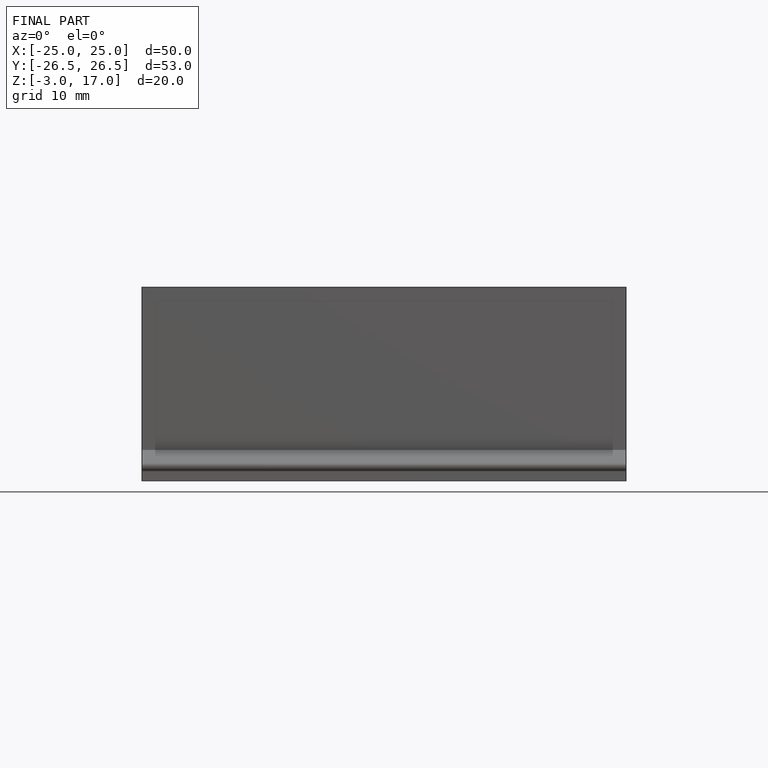
[diagram: finished part — front view with bounding-box wireframe]
